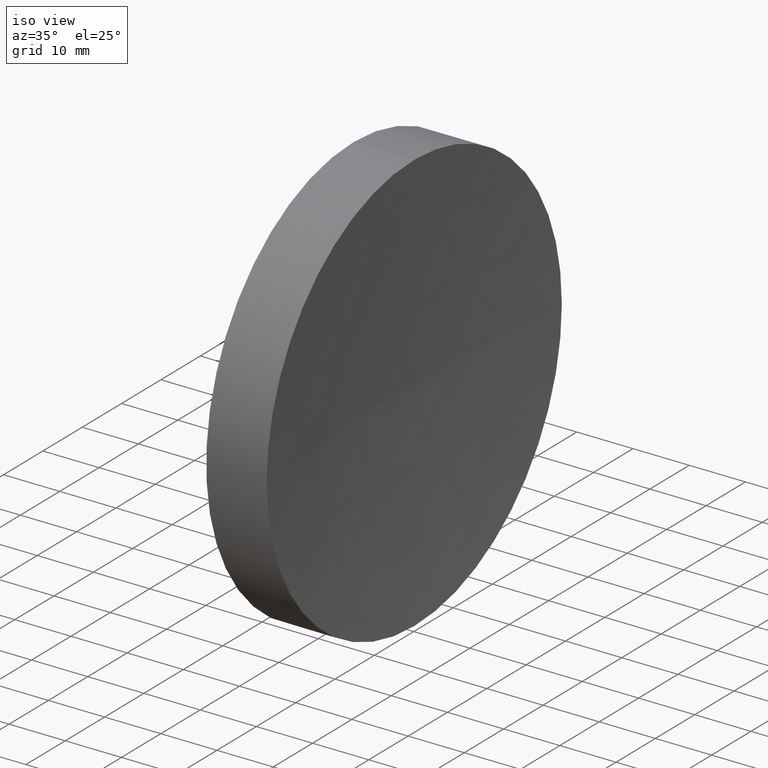
[diagram: clean part render]
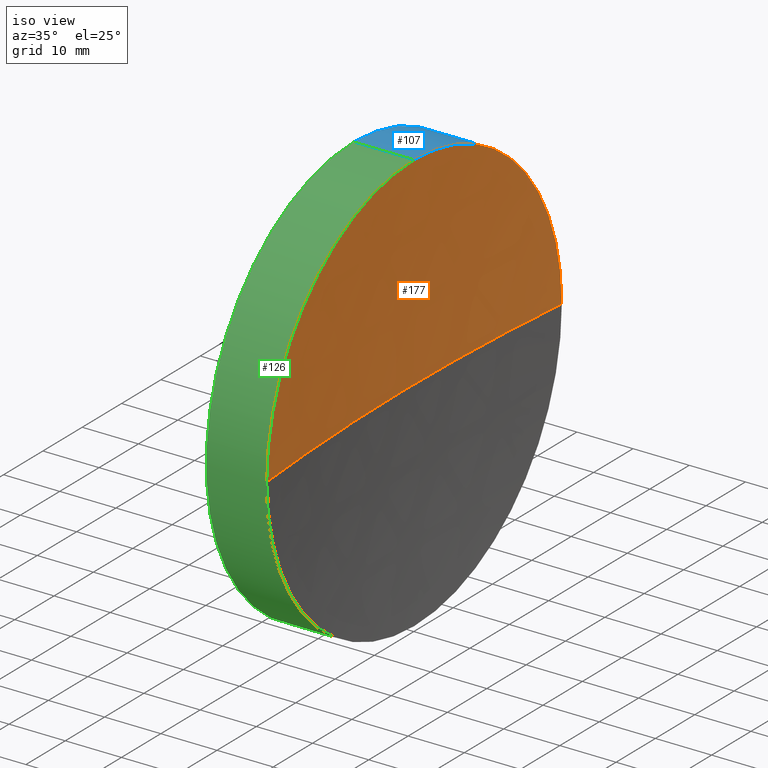
[diagram: same view with three faces highlighted in distinct colors, each labeled with its STEP entity id]
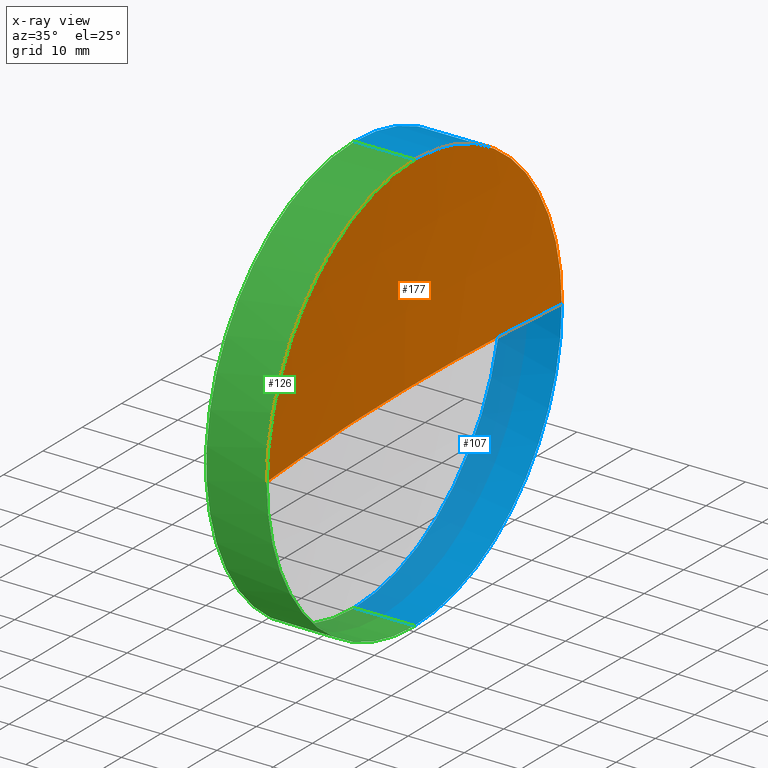
[diagram: x-ray of the same camera — body ghosted, the three highlighted faces saturated]
A machine part, iso view with three faces highlighted in distinct colors.
The next image is the same camera in x-ray (body ghosted, the three faces saturated) — at least one of them is partly hidden behind the body in this view.
Their STEP definitions:

[orange] entity #177 — the highlighted spherical surface has radius 400 mm.
#3 = CIRCLE ( 'NONE', #118, 37.50000000000000700 ) ;
#5 = VERTEX_POINT ( 'NONE', #6 ) ;
#6 = CARTESIAN_POINT ( 'NONE',  ( 239.1996119002084500, 138.7560422467451000, 0.0000000000000000000 ) ) ;
#9 = ORIENTED_EDGE ( 'NONE', *, *, #31, .F. ) ;
#10 = AXIS2_PLACEMENT_3D ( 'NONE', #80, #78, #130 ) ;
#20 = VERTEX_POINT ( 'NONE', #37 ) ;
#22 = CARTESIAN_POINT ( 'NONE',  ( 240.9613038483586300, 138.7560422467448700, 37.50000000000000700 ) ) ;
#31 = EDGE_CURVE ( 'NONE', #34, #20, #111, .T. ) ;
#34 = VERTEX_POINT ( 'NONE', #22 ) ;
#37 = CARTESIAN_POINT ( 'NONE',  ( 240.9613038483586500, 176.2560422467447800, 4.592425496802536500E-015 ) ) ;
#40 = CARTESIAN_POINT ( 'NONE',  ( 639.1996119002084200, 138.7560422467451200, 0.0000000000000000000 ) ) ;
#58 = CIRCLE ( 'NONE', #10, 400.0000000000000000 ) ;
#61 = VERTEX_POINT ( 'NONE', #147 ) ;
#64 = DIRECTION ( 'NONE',  ( 0.0000000000000000000, 0.0000000000000000000, 1.000000000000000000 ) ) ;
#66 = DIRECTION ( 'NONE',  ( 0.0000000000000000000, -1.224646799147353200E-016, 1.000000000000000000 ) ) ;
#67 = AXIS2_PLACEMENT_3D ( 'NONE', #40, #93, #183 ) ;
#68 = ORIENTED_EDGE ( 'NONE', *, *, #90, .T. ) ;
#78 = DIRECTION ( 'NONE',  ( 0.0000000000000000000, 0.0000000000000000000, -1.000000000000000000 ) ) ;
#80 = CARTESIAN_POINT ( 'NONE',  ( 639.1996119002084200, 138.7560422467451200, 0.0000000000000000000 ) ) ;
#90 = EDGE_CURVE ( 'NONE', #61, #5, #58, .T. ) ;
#91 = AXIS2_PLACEMENT_3D ( 'NONE', #145, #122, #64 ) ;
#92 = SPHERICAL_SURFACE ( 'NONE', #67, 400.0000000000000000 ) ;
#93 = DIRECTION ( 'NONE',  ( 0.0000000000000000000, 0.0000000000000000000, 1.000000000000000000 ) ) ;
#98 = ORIENTED_EDGE ( 'NONE', *, *, #110, .F. ) ;
#109 = FACE_OUTER_BOUND ( 'NONE', #120, .T. ) ;
#110 = EDGE_CURVE ( 'NONE', #61, #34, #3, .T. ) ;
#111 = CIRCLE ( 'NONE', #91, 37.50000000000000700 ) ;
#114 = DIRECTION ( 'NONE',  ( -1.000000000000000000, -0.0000000000000000000, -0.0000000000000000000 ) ) ;
#115 = CARTESIAN_POINT ( 'NONE',  ( 639.1996119002084200, 138.7560422467451200, 0.0000000000000000000 ) ) ;
#117 = DIRECTION ( 'NONE',  ( 0.0000000000000000000, 0.0000000000000000000, 1.000000000000000000 ) ) ;
#118 = AXIS2_PLACEMENT_3D ( 'NONE', #178, #114, #117 ) ;
#120 = EDGE_LOOP ( 'NONE', ( #144, #9, #98, #68 ) ) ;
#122 = DIRECTION ( 'NONE',  ( -1.000000000000000000, -0.0000000000000000000, -0.0000000000000000000 ) ) ;
#123 = EDGE_CURVE ( 'NONE', #20, #5, #143, .T. ) ;
#130 = DIRECTION ( 'NONE',  ( -1.000000000000000000, 0.0000000000000000000, 0.0000000000000000000 ) ) ;
#131 = AXIS2_PLACEMENT_3D ( 'NONE', #115, #66, #161 ) ;
#143 = CIRCLE ( 'NONE', #131, 400.0000000000000000 ) ;
#144 = ORIENTED_EDGE ( 'NONE', *, *, #123, .F. ) ;
#145 = CARTESIAN_POINT ( 'NONE',  ( 240.9613038483586300, 138.7560422467448700, 0.0000000000000000000 ) ) ;
#147 = CARTESIAN_POINT ( 'NONE',  ( 240.9613038483586500, 101.2560422467452000, 0.0000000000000000000 ) ) ;
#161 = DIRECTION ( 'NONE',  ( 0.0000000000000000000, -1.000000000000000000, -1.224646799147353200E-016 ) ) ;
#177 = ADVANCED_FACE ( 'NONE', ( #109 ), #92, .F. ) ;
#178 = CARTESIAN_POINT ( 'NONE',  ( 240.9613038483586300, 138.7560422467448700, 0.0000000000000000000 ) ) ;
#183 = DIRECTION ( 'NONE',  ( 0.0000000000000000000, -1.000000000000000000, 0.0000000000000000000 ) ) ;

[blue] entity #107 — the highlighted cylindrical surface (partial cylindrical patch) has radius 37.5 mm, axis along (-1, -0, -0).
#12 = DIRECTION ( 'NONE',  ( 0.0000000000000000000, 0.0000000000000000000, 1.000000000000000000 ) ) ;
#15 = EDGE_CURVE ( 'NONE', #20, #163, #88, .T. ) ;
#17 = AXIS2_PLACEMENT_3D ( 'NONE', #157, #63, #21 ) ;
#20 = VERTEX_POINT ( 'NONE', #37 ) ;
#21 = DIRECTION ( 'NONE',  ( 0.0000000000000000000, 0.0000000000000000000, 1.000000000000000000 ) ) ;
#22 = CARTESIAN_POINT ( 'NONE',  ( 240.9613038483586300, 138.7560422467448700, 37.50000000000000700 ) ) ;
#24 = EDGE_CURVE ( 'NONE', #34, #156, #134, .T. ) ;
#30 = LINE ( 'NONE', #113, #138 ) ;
#31 = EDGE_CURVE ( 'NONE', #34, #20, #111, .T. ) ;
#34 = VERTEX_POINT ( 'NONE', #22 ) ;
#37 = CARTESIAN_POINT ( 'NONE',  ( 240.9613038483586500, 176.2560422467447800, 4.592425496802536500E-015 ) ) ;
#42 = AXIS2_PLACEMENT_3D ( 'NONE', #159, #102, #12 ) ;
#52 = CARTESIAN_POINT ( 'NONE',  ( 217.9702860043302100, 138.7560422467448700, 37.50000000000000700 ) ) ;
#55 = CARTESIAN_POINT ( 'NONE',  ( 230.1996119052661200, 138.7560422467448700, 37.50000000000000700 ) ) ;
#59 = VERTEX_POINT ( 'NONE', #77 ) ;
#62 = ORIENTED_EDGE ( 'NONE', *, *, #15, .T. ) ;
#63 = DIRECTION ( 'NONE',  ( -1.000000000000000000, -0.0000000000000000000, -0.0000000000000000000 ) ) ;
#64 = DIRECTION ( 'NONE',  ( 0.0000000000000000000, 0.0000000000000000000, 1.000000000000000000 ) ) ;
#69 = DIRECTION ( 'NONE',  ( 0.0000000000000000000, 0.0000000000000000000, 1.000000000000000000 ) ) ;
#72 = VECTOR ( 'NONE', #76, 1000.000000000000000 ) ;
#76 = DIRECTION ( 'NONE',  ( -1.000000000000000000, -0.0000000000000000000, -0.0000000000000000000 ) ) ;
#77 = CARTESIAN_POINT ( 'NONE',  ( 230.1996119052661200, 138.7560422467448700, -37.50000000000000700 ) ) ;
#81 = CARTESIAN_POINT ( 'NONE',  ( 240.9613038483586300, 138.7560422467448700, -37.50000000000000700 ) ) ;
#82 = CARTESIAN_POINT ( 'NONE',  ( 230.1996119052661200, 138.7560422467448700, 0.0000000000000000000 ) ) ;
#85 = EDGE_CURVE ( 'NONE', #163, #59, #30, .T. ) ;
#86 = CIRCLE ( 'NONE', #104, 37.50000000000000700 ) ;
#88 = CIRCLE ( 'NONE', #17, 37.50000000000000700 ) ;
#91 = AXIS2_PLACEMENT_3D ( 'NONE', #145, #122, #64 ) ;
#94 = EDGE_CURVE ( 'NONE', #156, #59, #86, .T. ) ;
#95 = DIRECTION ( 'NONE',  ( -1.000000000000000000, -0.0000000000000000000, -0.0000000000000000000 ) ) ;
#102 = DIRECTION ( 'NONE',  ( -1.000000000000000000, -0.0000000000000000000, -0.0000000000000000000 ) ) ;
#104 = AXIS2_PLACEMENT_3D ( 'NONE', #82, #108, #69 ) ;
#107 = ADVANCED_FACE ( 'NONE', ( #149 ), #166, .T. ) ;
#108 = DIRECTION ( 'NONE',  ( -1.000000000000000000, -0.0000000000000000000, -0.0000000000000000000 ) ) ;
#111 = CIRCLE ( 'NONE', #91, 37.50000000000000700 ) ;
#113 = CARTESIAN_POINT ( 'NONE',  ( 217.9702860043302100, 138.7560422467448700, -37.50000000000000700 ) ) ;
#122 = DIRECTION ( 'NONE',  ( -1.000000000000000000, -0.0000000000000000000, -0.0000000000000000000 ) ) ;
#134 = LINE ( 'NONE', #52, #72 ) ;
#138 = VECTOR ( 'NONE', #95, 1000.000000000000000 ) ;
#139 = ORIENTED_EDGE ( 'NONE', *, *, #24, .F. ) ;
#141 = ORIENTED_EDGE ( 'NONE', *, *, #31, .T. ) ;
#145 = CARTESIAN_POINT ( 'NONE',  ( 240.9613038483586300, 138.7560422467448700, 0.0000000000000000000 ) ) ;
#149 = FACE_OUTER_BOUND ( 'NONE', #182, .T. ) ;
#154 = ORIENTED_EDGE ( 'NONE', *, *, #94, .F. ) ;
#156 = VERTEX_POINT ( 'NONE', #55 ) ;
#157 = CARTESIAN_POINT ( 'NONE',  ( 240.9613038483586300, 138.7560422467448700, 0.0000000000000000000 ) ) ;
#159 = CARTESIAN_POINT ( 'NONE',  ( 217.9702860043302100, 138.7560422467448700, 0.0000000000000000000 ) ) ;
#163 = VERTEX_POINT ( 'NONE', #81 ) ;
#166 = CYLINDRICAL_SURFACE ( 'NONE', #42, 37.50000000000000700 ) ;
#170 = ORIENTED_EDGE ( 'NONE', *, *, #85, .T. ) ;
#182 = EDGE_LOOP ( 'NONE', ( #62, #170, #154, #139, #141 ) ) ;

[green] entity #126 — the highlighted cylindrical surface (partial cylindrical patch) has radius 37.5 mm, axis along (-1, -0, -0).
#2 = AXIS2_PLACEMENT_3D ( 'NONE', #132, #103, #11 ) ;
#3 = CIRCLE ( 'NONE', #118, 37.50000000000000700 ) ;
#11 = DIRECTION ( 'NONE',  ( 0.0000000000000000000, 0.0000000000000000000, 1.000000000000000000 ) ) ;
#18 = CIRCLE ( 'NONE', #172, 37.50000000000000700 ) ;
#22 = CARTESIAN_POINT ( 'NONE',  ( 240.9613038483586300, 138.7560422467448700, 37.50000000000000700 ) ) ;
#24 = EDGE_CURVE ( 'NONE', #34, #156, #134, .T. ) ;
#25 = DIRECTION ( 'NONE',  ( 0.0000000000000000000, 0.0000000000000000000, 1.000000000000000000 ) ) ;
#26 = ORIENTED_EDGE ( 'NONE', *, *, #146, .T. ) ;
#29 = FACE_OUTER_BOUND ( 'NONE', #101, .T. ) ;
#30 = LINE ( 'NONE', #113, #138 ) ;
#34 = VERTEX_POINT ( 'NONE', #22 ) ;
#41 = CARTESIAN_POINT ( 'NONE',  ( 230.1996119052661200, 138.7560422467448700, 0.0000000000000000000 ) ) ;
#45 = ORIENTED_EDGE ( 'NONE', *, *, #85, .F. ) ;
#52 = CARTESIAN_POINT ( 'NONE',  ( 217.9702860043302100, 138.7560422467448700, 37.50000000000000700 ) ) ;
#55 = CARTESIAN_POINT ( 'NONE',  ( 230.1996119052661200, 138.7560422467448700, 37.50000000000000700 ) ) ;
#56 = DIRECTION ( 'NONE',  ( 0.0000000000000000000, 0.0000000000000000000, 1.000000000000000000 ) ) ;
#59 = VERTEX_POINT ( 'NONE', #77 ) ;
#60 = AXIS2_PLACEMENT_3D ( 'NONE', #41, #181, #25 ) ;
#61 = VERTEX_POINT ( 'NONE', #147 ) ;
#70 = ORIENTED_EDGE ( 'NONE', *, *, #185, .F. ) ;
#72 = VECTOR ( 'NONE', #76, 1000.000000000000000 ) ;
#76 = DIRECTION ( 'NONE',  ( -1.000000000000000000, -0.0000000000000000000, -0.0000000000000000000 ) ) ;
#77 = CARTESIAN_POINT ( 'NONE',  ( 230.1996119052661200, 138.7560422467448700, -37.50000000000000700 ) ) ;
#79 = CARTESIAN_POINT ( 'NONE',  ( 240.9613038483586300, 138.7560422467448700, 0.0000000000000000000 ) ) ;
#81 = CARTESIAN_POINT ( 'NONE',  ( 240.9613038483586300, 138.7560422467448700, -37.50000000000000700 ) ) ;
#85 = EDGE_CURVE ( 'NONE', #163, #59, #30, .T. ) ;
#95 = DIRECTION ( 'NONE',  ( -1.000000000000000000, -0.0000000000000000000, -0.0000000000000000000 ) ) ;
#101 = EDGE_LOOP ( 'NONE', ( #45, #26, #171, #105, #70 ) ) ;
#103 = DIRECTION ( 'NONE',  ( -1.000000000000000000, -0.0000000000000000000, -0.0000000000000000000 ) ) ;
#105 = ORIENTED_EDGE ( 'NONE', *, *, #24, .T. ) ;
#110 = EDGE_CURVE ( 'NONE', #61, #34, #3, .T. ) ;
#113 = CARTESIAN_POINT ( 'NONE',  ( 217.9702860043302100, 138.7560422467448700, -37.50000000000000700 ) ) ;
#114 = DIRECTION ( 'NONE',  ( -1.000000000000000000, -0.0000000000000000000, -0.0000000000000000000 ) ) ;
#117 = DIRECTION ( 'NONE',  ( 0.0000000000000000000, 0.0000000000000000000, 1.000000000000000000 ) ) ;
#118 = AXIS2_PLACEMENT_3D ( 'NONE', #178, #114, #117 ) ;
#126 = ADVANCED_FACE ( 'NONE', ( #29 ), #184, .T. ) ;
#127 = CIRCLE ( 'NONE', #60, 37.50000000000000700 ) ;
#129 = DIRECTION ( 'NONE',  ( -1.000000000000000000, -0.0000000000000000000, -0.0000000000000000000 ) ) ;
#132 = CARTESIAN_POINT ( 'NONE',  ( 217.9702860043302100, 138.7560422467448700, 0.0000000000000000000 ) ) ;
#134 = LINE ( 'NONE', #52, #72 ) ;
#138 = VECTOR ( 'NONE', #95, 1000.000000000000000 ) ;
#146 = EDGE_CURVE ( 'NONE', #163, #61, #18, .T. ) ;
#147 = CARTESIAN_POINT ( 'NONE',  ( 240.9613038483586500, 101.2560422467452000, 0.0000000000000000000 ) ) ;
#156 = VERTEX_POINT ( 'NONE', #55 ) ;
#163 = VERTEX_POINT ( 'NONE', #81 ) ;
#171 = ORIENTED_EDGE ( 'NONE', *, *, #110, .T. ) ;
#172 = AXIS2_PLACEMENT_3D ( 'NONE', #79, #129, #56 ) ;
#178 = CARTESIAN_POINT ( 'NONE',  ( 240.9613038483586300, 138.7560422467448700, 0.0000000000000000000 ) ) ;
#181 = DIRECTION ( 'NONE',  ( -1.000000000000000000, -0.0000000000000000000, -0.0000000000000000000 ) ) ;
#184 = CYLINDRICAL_SURFACE ( 'NONE', #2, 37.50000000000000700 ) ;
#185 = EDGE_CURVE ( 'NONE', #59, #156, #127, .T. ) ;